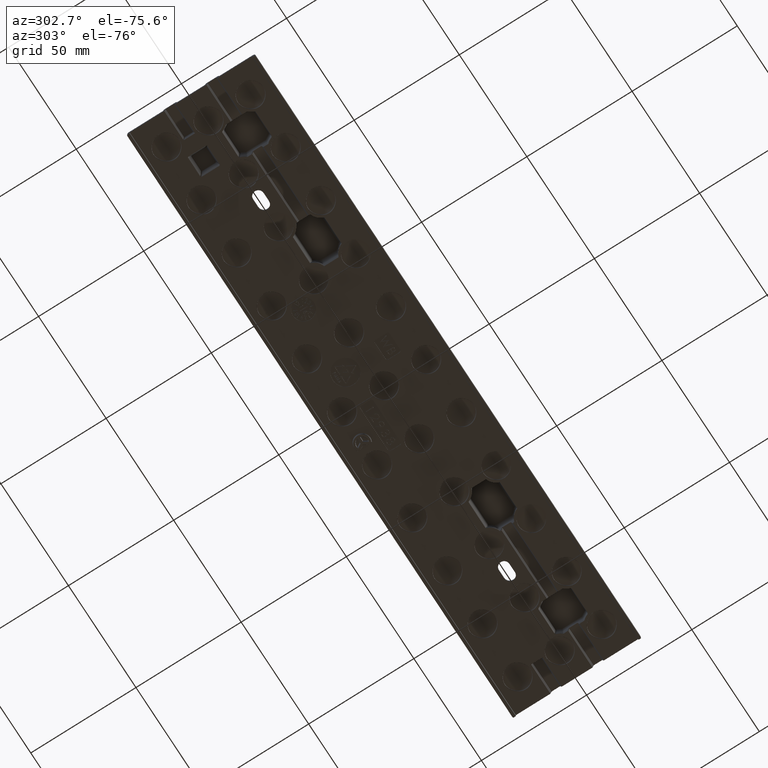
[diagram: clean part render]
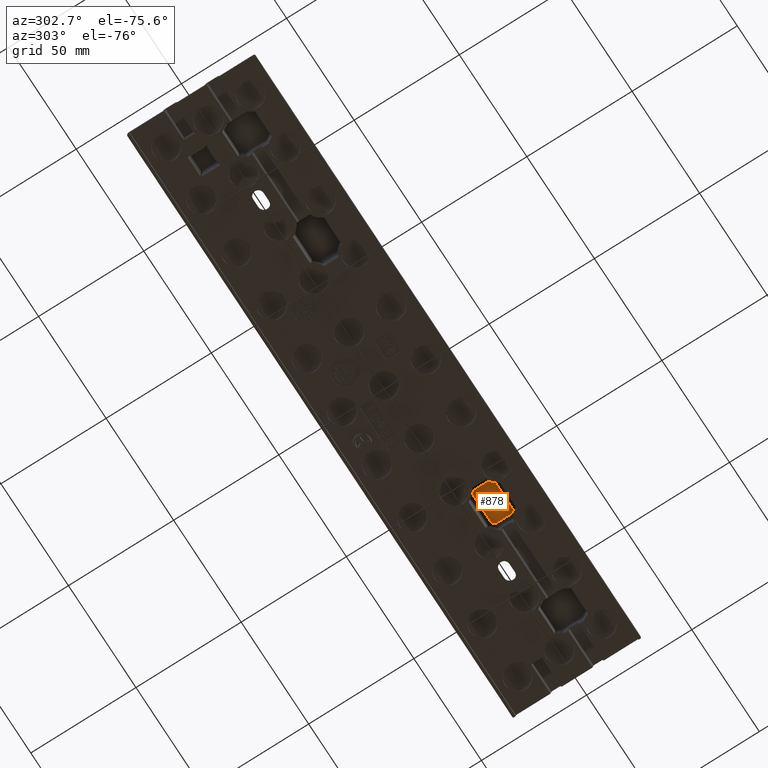
[diagram: same view with one face highlighted and labeled with its STEP entity id]
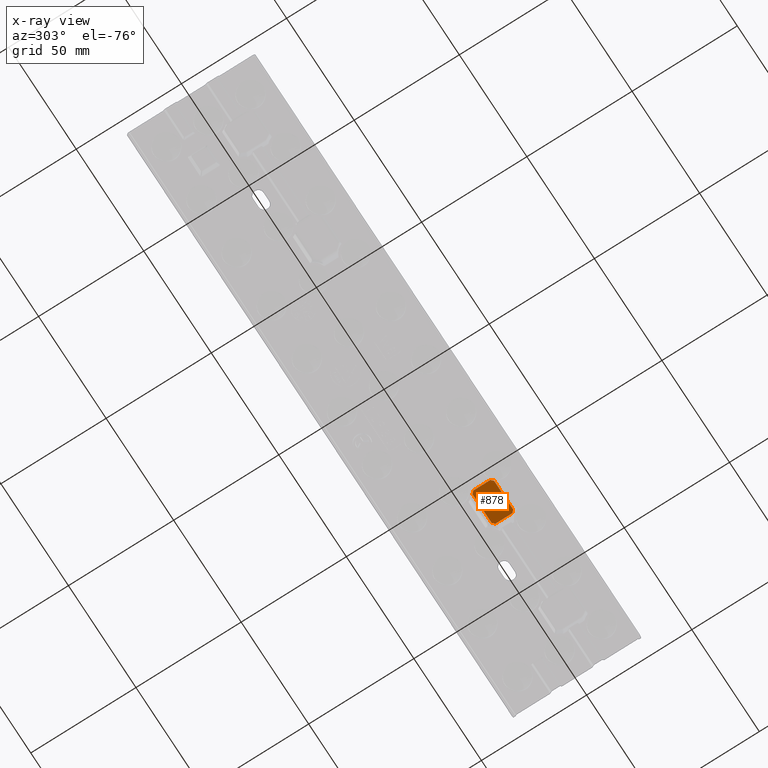
[diagram: x-ray of the same camera — body ghosted, the highlighted face saturated]
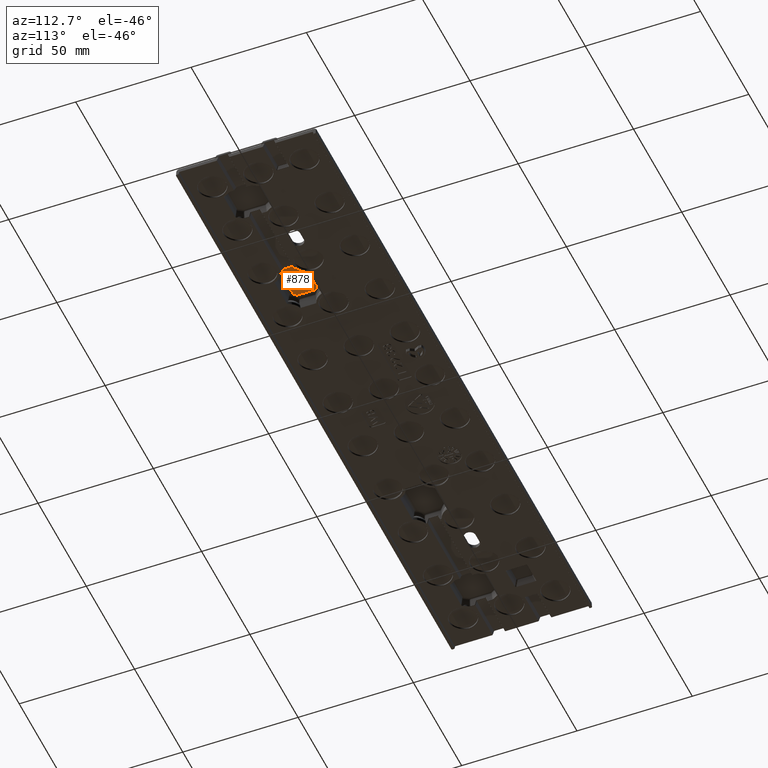
[diagram: same view with one face highlighted and labeled with its STEP entity id]
A machine part, auxiliary view. The second image highlights one B-rep face of the part: STEP entity #878.
The next image is the same camera in x-ray: the body ghosted, the highlighted face saturated — about 0% of this face is hidden behind the body in this view.
A second angle (auxiliary view) of the same face is appended — the face is thin or edge-on in the first view.
In plain terms, the highlighted planar face has unit normal (0, 0, -1).
Its self-contained STEP definition (entity closure, byte-faithful):
#878 = ADVANCED_FACE ( 'NONE', ( #7728 ), #46109, .T. ) ;
#1676 = EDGE_CURVE ( 'NONE', #106183, #100402, #59816, .T. ) ;
#2888 = ORIENTED_EDGE ( 'NONE', *, *, #24108, .T. ) ;
#2975 = VERTEX_POINT ( 'NONE', #60814 ) ;
#5480 = ORIENTED_EDGE ( 'NONE', *, *, #104120, .T. ) ;
#7728 = FACE_OUTER_BOUND ( 'NONE', #43136, .T. ) ;
#10331 = DIRECTION ( 'NONE',  ( 0.7071067811865492400, 0.7071067811865458000, 0.0000000000000000000 ) ) ;
#10421 = CARTESIAN_POINT ( 'NONE',  ( 57.36533545415828400, -14.53504004744409700, 5.299999999999999800 ) ) ;
#11466 = LINE ( 'NONE', #64743, #97679 ) ;
#22589 = ORIENTED_EDGE ( 'NONE', *, *, #1676, .T. ) ;
#23218 = DIRECTION ( 'NONE',  ( -9.251858538542948200E-016, -1.000000000000000000, 0.0000000000000000000 ) ) ;
#24108 = EDGE_CURVE ( 'NONE', #78779, #2975, #44034, .T. ) ;
#24495 = VECTOR ( 'NONE', #23218, 1000.000000000000000 ) ;
#27591 = DIRECTION ( 'NONE',  ( 0.0000000000000000000, 1.000000000000000000, 0.0000000000000000000 ) ) ;
#28163 = CARTESIAN_POINT ( 'NONE',  ( 56.86100237075614700, -5.969293035958078700, 5.299999999999999800 ) ) ;
#31110 = VECTOR ( 'NONE', #43239, 1000.000000000000000 ) ;
#32063 = LINE ( 'NONE', #52407, #54241 ) ;
#33404 = VERTEX_POINT ( 'NONE', #48508 ) ;
#34861 = CARTESIAN_POINT ( 'NONE',  ( 0.0000000000000000000, -4.861002370756244400, 5.299999999999999800 ) ) ;
#36730 = DIRECTION ( 'NONE',  ( -0.7071067811865459100, 0.7071067811865491300, 0.0000000000000000000 ) ) ;
#38464 = CARTESIAN_POINT ( 'NONE',  ( 58.38709624215516700, -15.13899762924380200, 5.299999999999999800 ) ) ;
#41173 = EDGE_CURVE ( 'NONE', #100402, #77017, #96087, .T. ) ;
#42869 = DIRECTION ( 'NONE',  ( 0.0000000000000000000, 0.0000000000000000000, -1.000000000000000000 ) ) ;
#42909 = VECTOR ( 'NONE', #90927, 1000.000000000000000 ) ;
#43136 = EDGE_LOOP ( 'NONE', ( #46653, #5480, #2888, #46122, #22589, #79084, #62850, #55982 ) ) ;
#43239 = DIRECTION ( 'NONE',  ( 1.000000000000000000, 0.0000000000000000000, 0.0000000000000000000 ) ) ;
#44034 = LINE ( 'NONE', #99395, #24495 ) ;
#45411 = LINE ( 'NONE', #74744, #87135 ) ;
#46109 = PLANE ( 'NONE',  #104094 ) ;
#46122 = ORIENTED_EDGE ( 'NONE', *, *, #63488, .T. ) ;
#46653 = ORIENTED_EDGE ( 'NONE', *, *, #63150, .T. ) ;
#46900 = LINE ( 'NONE', #51991, #69049 ) ;
#48508 = CARTESIAN_POINT ( 'NONE',  ( 57.96929303595798900, -4.861002370756244400, 5.299999999999999800 ) ) ;
#51211 = CARTESIAN_POINT ( 'NONE',  ( 73.13899762924369000, -5.969293035958053800, 5.299999999999999800 ) ) ;
#51991 = CARTESIAN_POINT ( 'NONE',  ( 57.46495995255590800, -5.365335454158324200, 5.299999999999999800 ) ) ;
#52407 = CARTESIAN_POINT ( 'NONE',  ( 56.86100237075614700, 0.0000000000000000000, 5.299999999999999800 ) ) ;
#53283 = LINE ( 'NONE', #34861, #31110 ) ;
#54241 = VECTOR ( 'NONE', #27591, 1000.000000000000000 ) ;
#55982 = ORIENTED_EDGE ( 'NONE', *, *, #86228, .T. ) ;
#59816 = LINE ( 'NONE', #38464, #42909 ) ;
#60814 = CARTESIAN_POINT ( 'NONE',  ( 73.13899762924367600, -14.03070696404199300, 5.299999999999999800 ) ) ;
#62850 = ORIENTED_EDGE ( 'NONE', *, *, #91779, .T. ) ;
#63150 = EDGE_CURVE ( 'NONE', #33404, #96174, #53283, .T. ) ;
#63488 = EDGE_CURVE ( 'NONE', #2975, #106183, #45411, .T. ) ;
#63844 = CARTESIAN_POINT ( 'NONE',  ( 57.96929303595798200, -15.13899762924380200, 5.299999999999999800 ) ) ;
#64743 = CARTESIAN_POINT ( 'NONE',  ( 72.63466454584161600, -5.464959952555970400, 5.299999999999999800 ) ) ;
#66753 = CARTESIAN_POINT ( 'NONE',  ( 72.03070696404186900, -15.13899762924380200, 5.299999999999999800 ) ) ;
#69049 = VECTOR ( 'NONE', #10331, 1000.000000000000100 ) ;
#69442 = CARTESIAN_POINT ( 'NONE',  ( 0.0000000000000000000, 0.0000000000000000000, 5.299999999999999800 ) ) ;
#73197 = DIRECTION ( 'NONE',  ( 0.7071067811865506800, -0.7071067811865443500, 0.0000000000000000000 ) ) ;
#74744 = CARTESIAN_POINT ( 'NONE',  ( 72.53504004744398500, -14.63466454584168000, 5.299999999999999800 ) ) ;
#77017 = VERTEX_POINT ( 'NONE', #101914 ) ;
#78779 = VERTEX_POINT ( 'NONE', #51211 ) ;
#79084 = ORIENTED_EDGE ( 'NONE', *, *, #41173, .T. ) ;
#83136 = DIRECTION ( 'NONE',  ( -0.7071067811865487900, -0.7071067811865463500, 0.0000000000000000000 ) ) ;
#86228 = EDGE_CURVE ( 'NONE', #90792, #33404, #46900, .T. ) ;
#87135 = VECTOR ( 'NONE', #83136, 1000.000000000000000 ) ;
#88234 = VECTOR ( 'NONE', #36730, 1000.000000000000100 ) ;
#90792 = VERTEX_POINT ( 'NONE', #28163 ) ;
#90927 = DIRECTION ( 'NONE',  ( -1.000000000000000000, 0.0000000000000000000, 0.0000000000000000000 ) ) ;
#91779 = EDGE_CURVE ( 'NONE', #77017, #90792, #32063, .T. ) ;
#96087 = LINE ( 'NONE', #10421, #88234 ) ;
#96174 = VERTEX_POINT ( 'NONE', #104459 ) ;
#97679 = VECTOR ( 'NONE', #73197, 1000.000000000000100 ) ;
#99395 = CARTESIAN_POINT ( 'NONE',  ( 73.13899762924367600, -13.61290375784480700, 5.299999999999999800 ) ) ;
#100402 = VERTEX_POINT ( 'NONE', #63844 ) ;
#101225 = DIRECTION ( 'NONE',  ( -1.000000000000000000, 0.0000000000000000000, -0.0000000000000000000 ) ) ;
#101914 = CARTESIAN_POINT ( 'NONE',  ( 56.86100237075614700, -14.03070696404195900, 5.299999999999999800 ) ) ;
#104094 = AXIS2_PLACEMENT_3D ( 'NONE', #69442, #42869, #101225 ) ;
#104120 = EDGE_CURVE ( 'NONE', #96174, #78779, #11466, .T. ) ;
#104459 = CARTESIAN_POINT ( 'NONE',  ( 72.03070696404186900, -4.861002370756244400, 5.299999999999999800 ) ) ;
#106183 = VERTEX_POINT ( 'NONE', #66753 ) ;